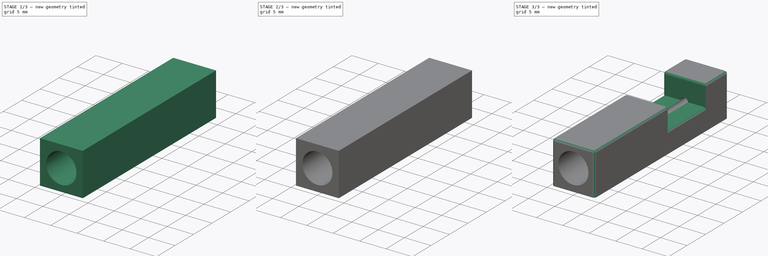
[diagram: build sequence overview — one tinted view per stage of 3, left to right]
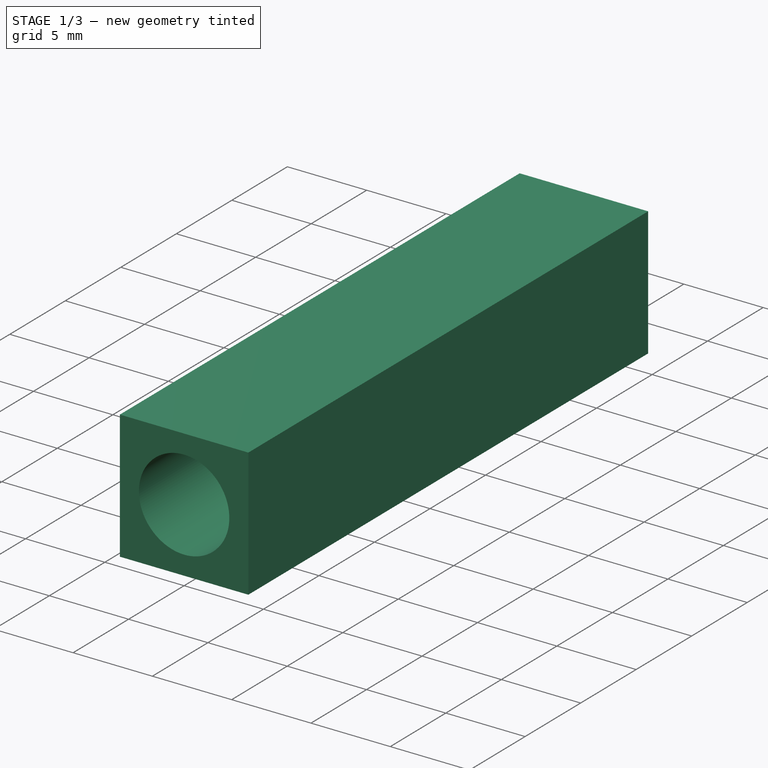
[diagram: stage 1 of 3 — iso view after this stage's code; geometry added in this stage tinted green]
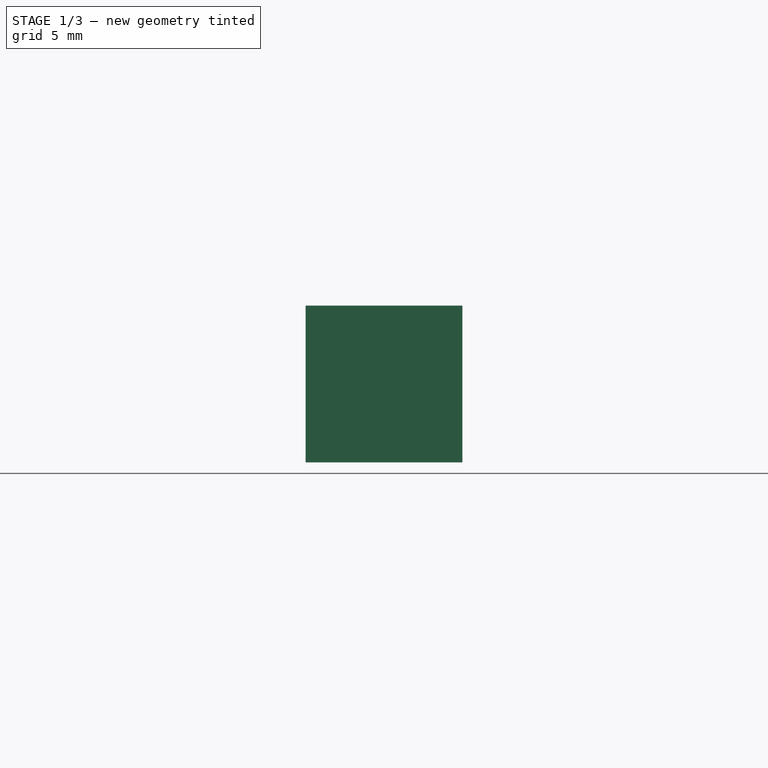
[diagram: stage 1 of 3 — front view after this stage's code; geometry added in this stage tinted green]
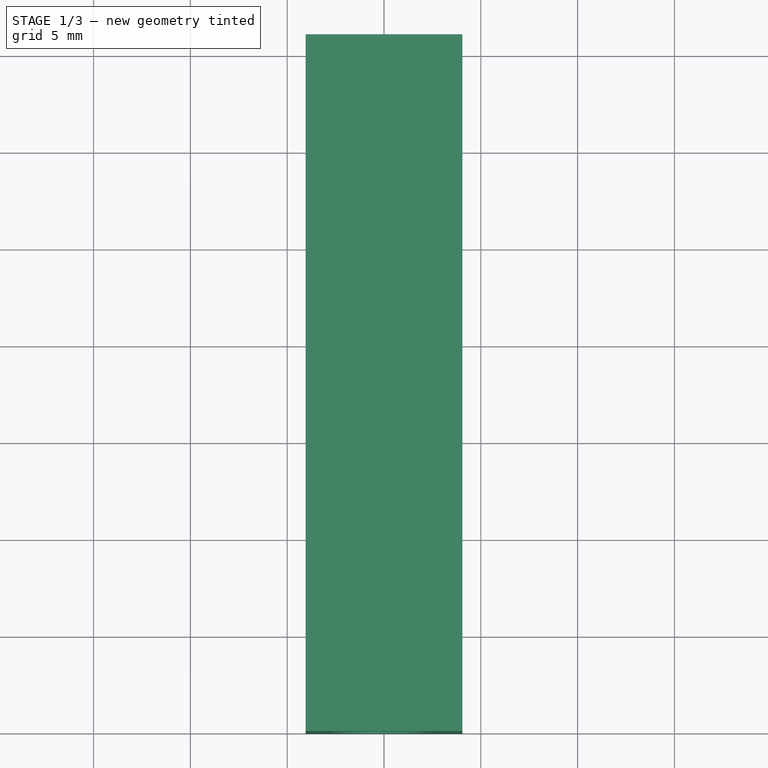
[diagram: stage 1 of 3 — top view after this stage's code; geometry added in this stage tinted green]
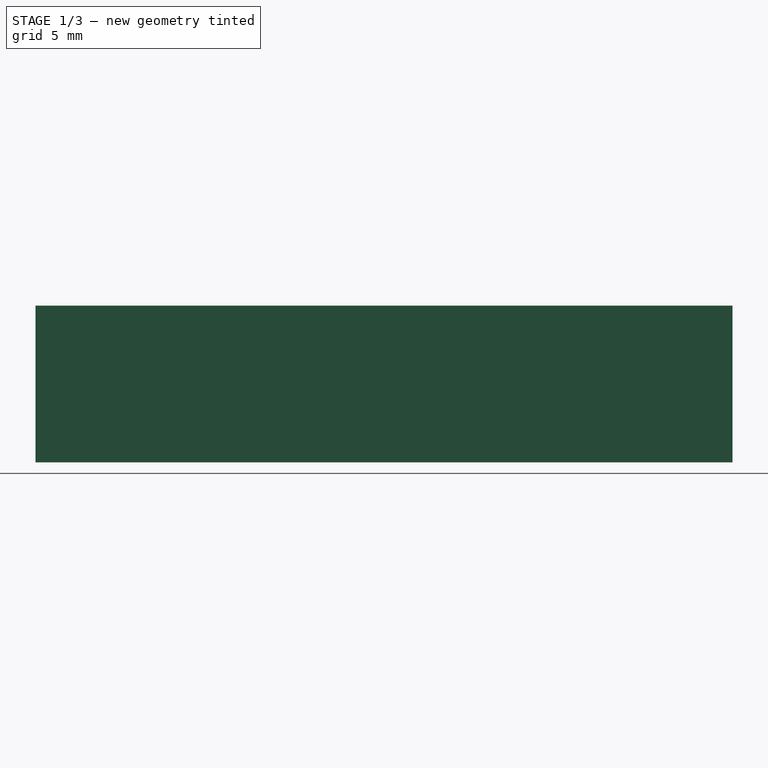
[diagram: stage 1 of 3 — right view after this stage's code; geometry added in this stage tinted green]
FCSTD DOCUMENT  (FreeCAD 1.0R39109 (Git))
Label: electrode_mount
License: All rights reserved
LicenseURL: https://en.wikipedia.org/wiki/All_rights_reserved
objects: Sketcher::SketchObject×4, PartDesign::Pocket×3, PartDesign::Plane×2, Spreadsheet::Sheet×1, PartDesign::Pad×1, PartDesign::Fillet×1, PartDesign::Body×1
note: 26 computed .brp shape members not serialized (recipe doc carries the construction recipe); baked Part::Feature solids carry a one-line shape summary decoded from their .brp

FEATURE [Spreadsheet::Sheet] Spreadsheet
  cells = A2='Parameters; A3='tube_diameter; B3(tube_diameter)==5.5 mm; A4='pin_diameter; B4(pin_diameter)==1.27 mm; A6='tube_margin; B6(tube_margin)==0.1 mm; A7='pin_margin; B7(pin_margin)==0.04 mm; A9='tube_insertion_depth; B9(tube_insertion_depth)==20 mm; A10='pin_insertion_depth; B10(pin_insertion_depth)==3 mm; A12='tube_hole_diameter; B12(tube_hole_diameter)==tube_diameter + 2 * tube_margin; A13='pin_hole_diameter; B13(pin_hole_diameter)==pin_diameter + pin_margin; A15='body_wall_thickness; B15(body_wall_thickness)==1.2 mm; A16='body_width; B16(body_width)==tube_diameter + 2 * tube_margin + 2 * body_wall_thickness; A17='body_tube_to_pin_gap; B17(body_tube_to_pin_gap)==10 mm; A18='body_tube_section_length; B18(body_tube_section_length)==tube_insertion_depth; A19='body_pin_section_length; B19(body_pin_section_length)==2 * pin_insertion_depth; A20='pin_hole_depth; B20(pin_hole_depth)==body_pin_section_length + body_tube_to_pin_gap; A21='body_length; B21(body_length)==body_tube_section_length + body_pin_section_length + body_tube_to_pin_gap; A22='fillet_radius; B22(fillet_radius)==0.5 mm
FEATURE [Sketcher::SketchObject] Sketch  label="BodySketch"
  ArcFitTolerance = 0
  AttachmentSupport = -> [XY_Plane]
  FullyConstrained = true
  MakeInternals = false
  MapMode = 5
  expr: Constraints[10] = Spreadsheet.body_length
  expr: Constraints[9] = Spreadsheet.body_width
  sketch-geometry (4):
    g0: LineSegment StartX=-4.05 StartY=36 StartZ=0 EndX=4.05 EndY=36 EndZ=0
    g1: LineSegment StartX=4.05 StartY=36 StartZ=0 EndX=4.05 EndY=0 EndZ=0
    g2: LineSegment StartX=4.05 StartY=0 StartZ=0 EndX=-4.05 EndY=0 EndZ=0
    g3: LineSegment StartX=-4.05 StartY=0 StartZ=0 EndX=-4.05 EndY=36 EndZ=0
  constraints (11):
    c: Coincident(g0,g1)
    c: Coincident(g1,g2)
    c: Coincident(g2,g3)
    c: Coincident(g3,g0)
    c: Horizontal(g0)
    c: Horizontal(g2)
    c: Vertical(g1)
    c: Vertical(g3)
    c: Symmetric(g2,g1,g-1)
    c: DistanceX(g2,g2) = 8.1
    c: DistanceY(g1,g1) = 36
FEATURE [PartDesign::Pad] Pad
  Direction = (0,0,1)
  Length = 8.1
  Length2 = 10
  Midplane = true
  Profile = -> Sketch
  ReferenceAxis = -> Sketch [N_Axis]
  Suppressed = false
  Type = 0
  expr: Length = Spreadsheet.body_width
FEATURE [Sketcher::SketchObject] Sketch001  label="TubeHoleSketch"
  ArcFitTolerance = 0
  AttachmentSupport = -> [XZ_Plane]
  FullyConstrained = true
  MakeInternals = false
  MapMode = 5
  Placement = pos=(0,0,0) rot=(1,0,0;1.5708rad)
  expr: Constraints[1] = Spreadsheet.tube_hole_diameter
  sketch-geometry (1):
    g0: Circle CenterX=0 CenterY=0 CenterZ=0 NormalX=0 NormalY=0 NormalZ=1 AngleXU=0 Radius=2.85
  constraints (2):
    c: Coincident(g0,g-1)
    c: Diameter(g0) = 5.7
FEATURE [PartDesign::Pocket] Pocket  label="TubeHolePocket"
  BaseFeature = -> Pad
  Direction = (0,1,-2e-16)
  Length = 20
  Length2 = 5
  Profile = -> Sketch001
  ReferenceAxis = -> Sketch001 [N_Axis]
  Suppressed = false
  Type = 0
  expr: Length = Spreadsheet.tube_insertion_depth
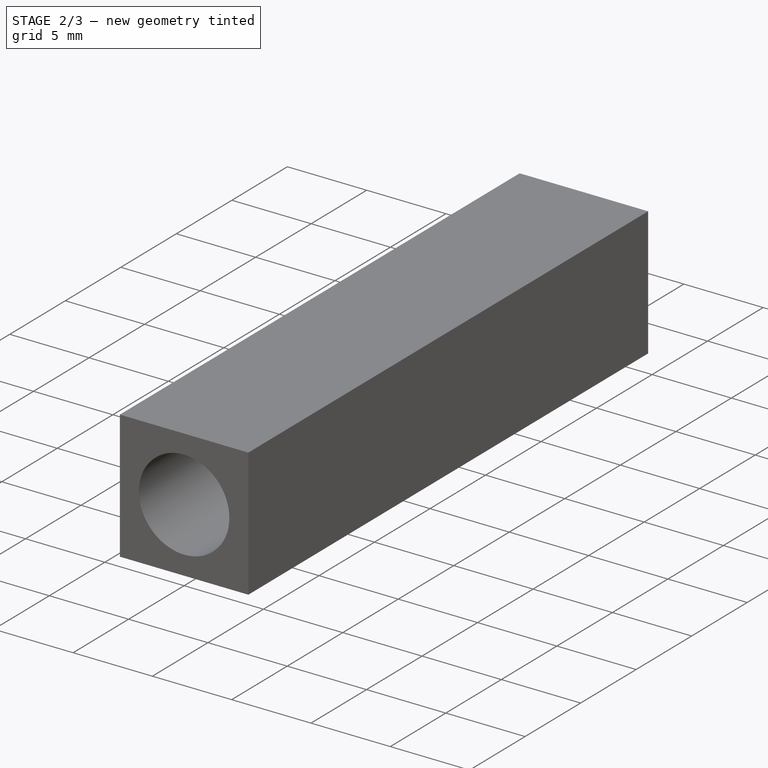
[diagram: stage 2 of 3 — iso view after this stage's code; geometry added in this stage tinted green]
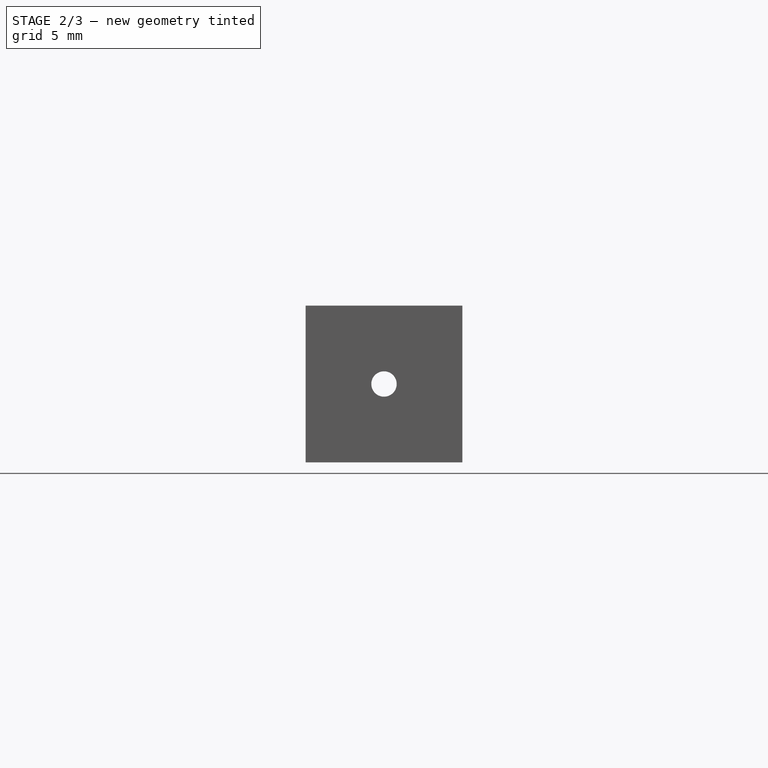
[diagram: stage 2 of 3 — front view after this stage's code; geometry added in this stage tinted green]
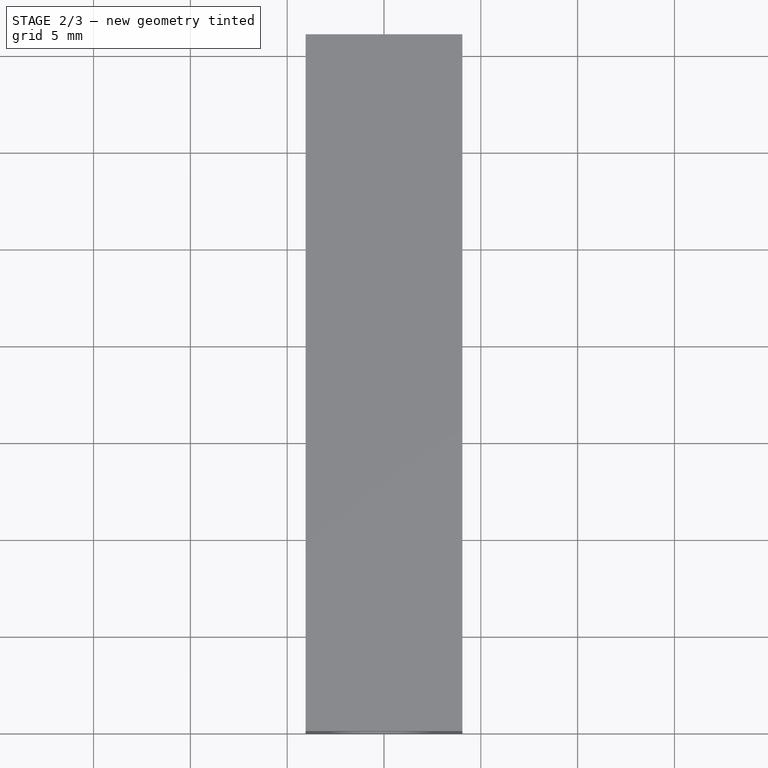
[diagram: stage 2 of 3 — top view after this stage's code; geometry added in this stage tinted green]
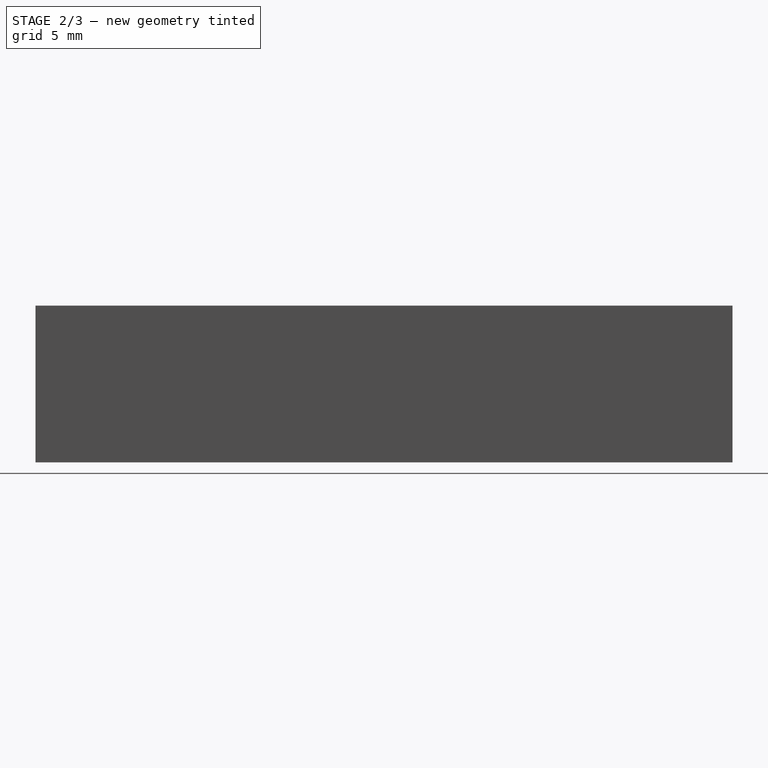
[diagram: stage 2 of 3 — right view after this stage's code; geometry added in this stage tinted green]
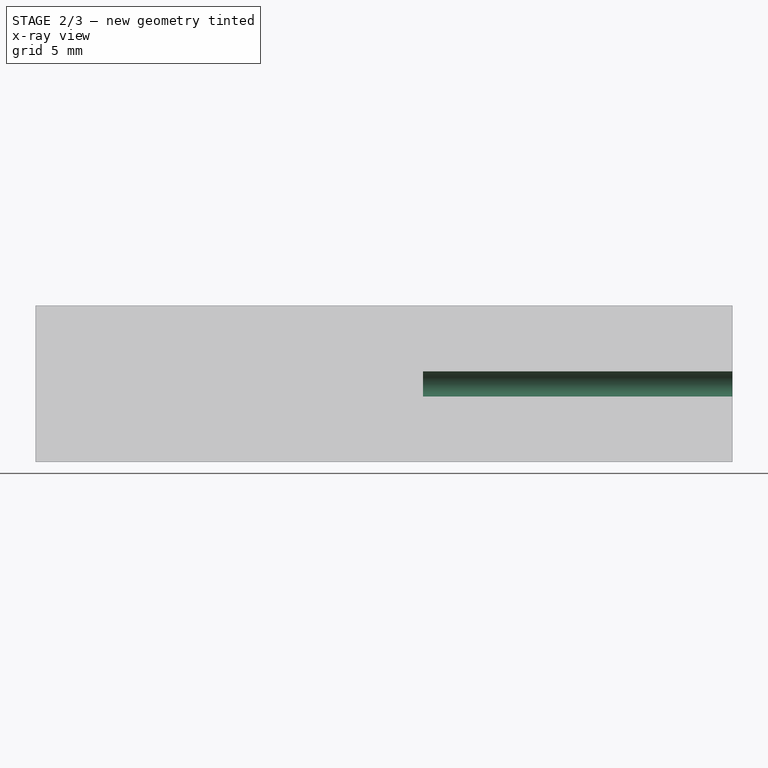
[diagram: stage 2 of 3 — x-ray composite at the right view; earlier geometry ghosted, this stage's added geometry solid]
FEATURE [PartDesign::Plane] DatumPlane  label="RearDatumPlane"
  AttachmentOffset = pos=(0,0,36) rot=(0,0,1;0rad)
  AttachmentSupport = -> [XZ_Plane]
  Length = 60
  MapMode = 5
  Placement = pos=(0,36,-8e-15) rot=(0,0.707107,0.707107;3.14159rad)
  ResizeMode = 0
  Width = 60
  expr: .AttachmentOffset.Base.z = Spreadsheet.body_length
FEATURE [Sketcher::SketchObject] Sketch002  label="PinHoleSketch"
  ArcFitTolerance = 0
  AttachmentSupport = -> [DatumPlane]
  FullyConstrained = true
  MakeInternals = false
  MapMode = 5
  Placement = pos=(0,36,-8e-15) rot=(0,0.707107,0.707107;3.14159rad)
  expr: Constraints[1] = Spreadsheet.pin_hole_diameter
  sketch-geometry (1):
    g0: Circle CenterX=0 CenterY=0 CenterZ=0 NormalX=0 NormalY=0 NormalZ=1 AngleXU=0 Radius=0.655
  constraints (2):
    c: Coincident(g0,g-1)
    c: Diameter(g0) = 1.31
FEATURE [PartDesign::Pocket] Pocket001  label="PinHolePocket"
  BaseFeature = -> Pocket
  Direction = (0,-1,2e-16)
  Length = 16
  Length2 = 5
  Profile = -> Sketch002
  ReferenceAxis = -> Sketch002 [N_Axis]
  Suppressed = false
  Type = 0
  expr: Length = Spreadsheet.pin_hole_depth
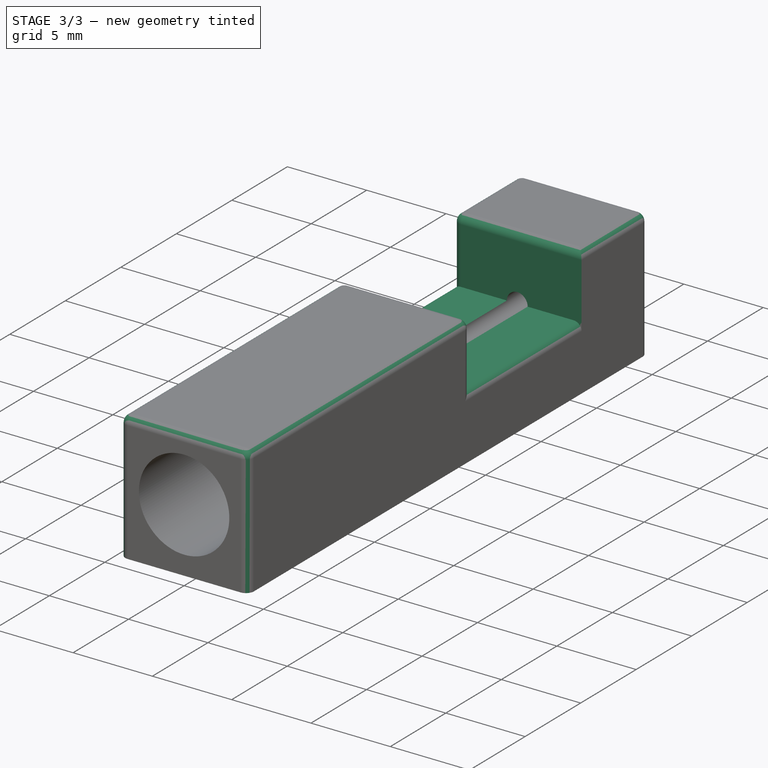
[diagram: stage 3 of 3 — iso view after this stage's code; geometry added in this stage tinted green]
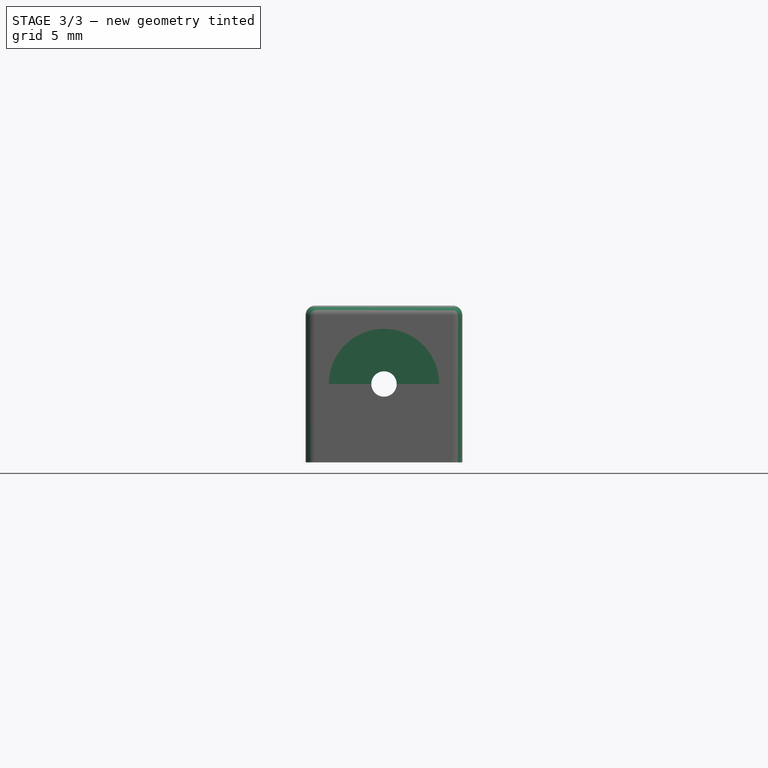
[diagram: stage 3 of 3 — front view after this stage's code; geometry added in this stage tinted green]
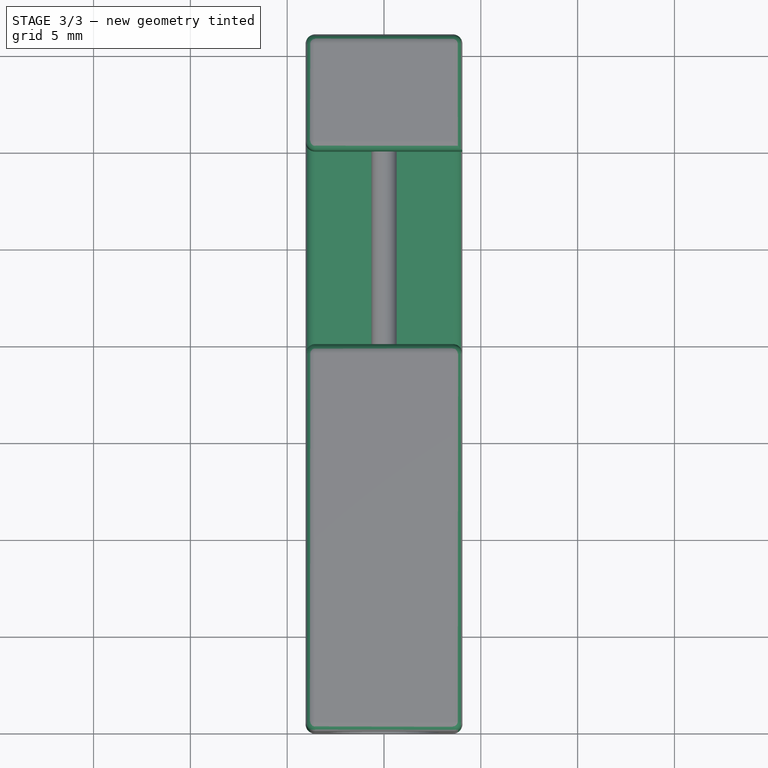
[diagram: stage 3 of 3 — top view after this stage's code; geometry added in this stage tinted green]
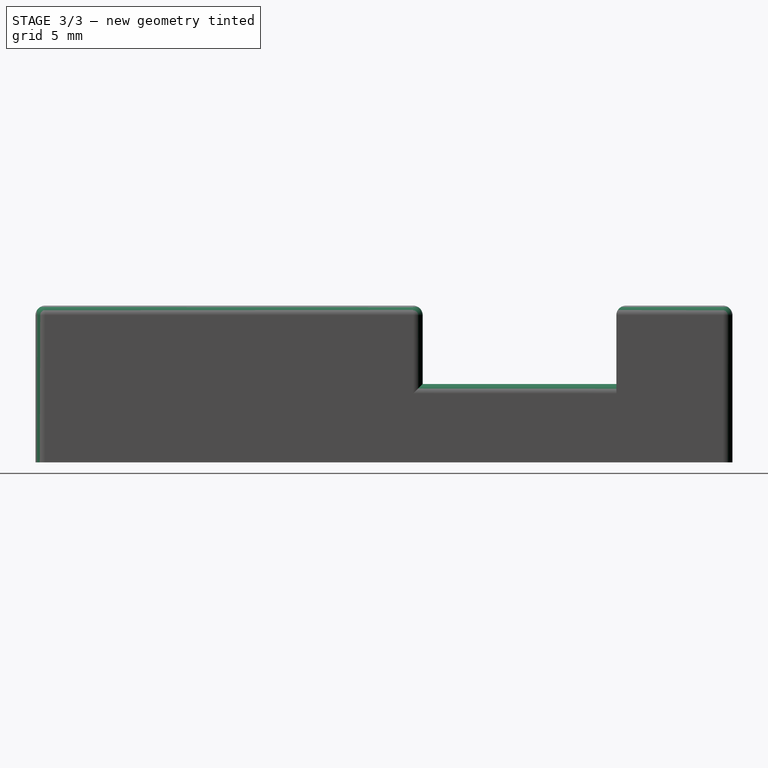
[diagram: stage 3 of 3 — right view after this stage's code; geometry added in this stage tinted green]
FEATURE [PartDesign::Plane] DatumPlane001  label="TopDatumPlane"
  AttachmentOffset = pos=(0,0,4.05) rot=(0,0,1;0rad)
  AttachmentSupport = -> [XY_Plane]
  Length = 61.0454
  MapMode = 5
  Placement = pos=(0,0,4.05) rot=(0,0,1;0rad)
  ResizeMode = 0
  Width = 72.0454
  expr: .AttachmentOffset.Base.z = Spreadsheet.body_width * 0.5
FEATURE [Sketcher::SketchObject] Sketch003  label="GapCutoutSketch"
  ArcFitTolerance = 0
  AttachmentSupport = -> [DatumPlane001]
  FullyConstrained = true
  MakeInternals = false
  MapMode = 5
  Placement = pos=(0,0,4.05) rot=(0,0,1;0rad)
  expr: Constraints[12] = Spreadsheet.body_width * 1.5
  expr: Constraints[13] = Spreadsheet.body_tube_to_pin_gap
  expr: Constraints[2] = Spreadsheet.body_tube_section_length
  sketch-geometry (5):
    g0: LineSegment [constr] StartX=0 StartY=0 StartZ=0 EndX=0 EndY=20 EndZ=0
    g1: LineSegment StartX=-6.075 StartY=30 StartZ=0 EndX=6.075 EndY=30 EndZ=0
    g2: LineSegment StartX=6.075 StartY=30 StartZ=0 EndX=6.075 EndY=20 EndZ=0
    g3: LineSegment StartX=6.075 StartY=20 StartZ=0 EndX=-6.075 EndY=20 EndZ=0
    g4: LineSegment StartX=-6.075 StartY=20 StartZ=0 EndX=-6.075 EndY=30 EndZ=0
  constraints (14):
    c: Coincident(g0,g-1)
    c: Vertical(g0)
    c: DistanceY(g0,g0) = 20
    c: Coincident(g1,g2)
    c: Coincident(g2,g3)
    c: Coincident(g3,g4)
    c: Coincident(g4,g1)
    c: Horizontal(g1)
    c: Horizontal(g3)
    c: Vertical(g2)
    c: Vertical(g4)
    c: Symmetric(g3,g2,g0)
    c: DistanceX(g3,g3) = 12.15
    c: DistanceY(g2,g2) = 10
FEATURE [PartDesign::Pocket] Pocket002  label="GapCutoutPocket"
  BaseFeature = -> Pocket001
  Direction = (0,0,-1)
  Length = 4.05
  Length2 = 5
  Profile = -> Sketch003
  ReferenceAxis = -> Sketch003 [N_Axis]
  Suppressed = false
  Type = 0
  expr: Length = Spreadsheet.body_width * 0.5
FEATURE [PartDesign::Fillet] Fillet
  Base = -> Pocket002 [Edge4,Edge3,Edge1,Edge15,Edge7,Edge11,Edge17,Edge34,Edge12,Edge18,Edge19,Edge20,Edge31,Edge10,Edge9,Edge8,Edge16]
  BaseFeature = -> Pocket002
  Radius = 0.5
  SupportTransform = false
  Suppressed = false
  UseAllEdges = false
  expr: Radius = Spreadsheet.fillet_radius
FEATURE [PartDesign::Body] Body
  AllowCompound = false
  Group = -> [Sketch,Pad,Sketch001,Pocket,DatumPlane,Sketch002,Pocket001,DatumPlane001,Sketch003,Pocket002,Fillet]
  Origin = -> Origin
  Tip = -> Fillet
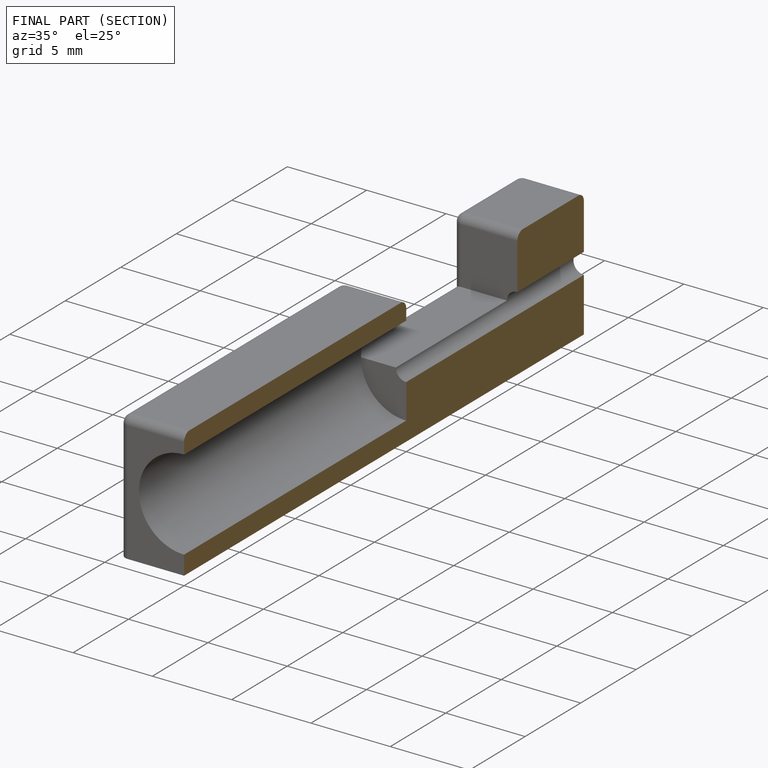
[diagram: finished part — half-section view (interior)]
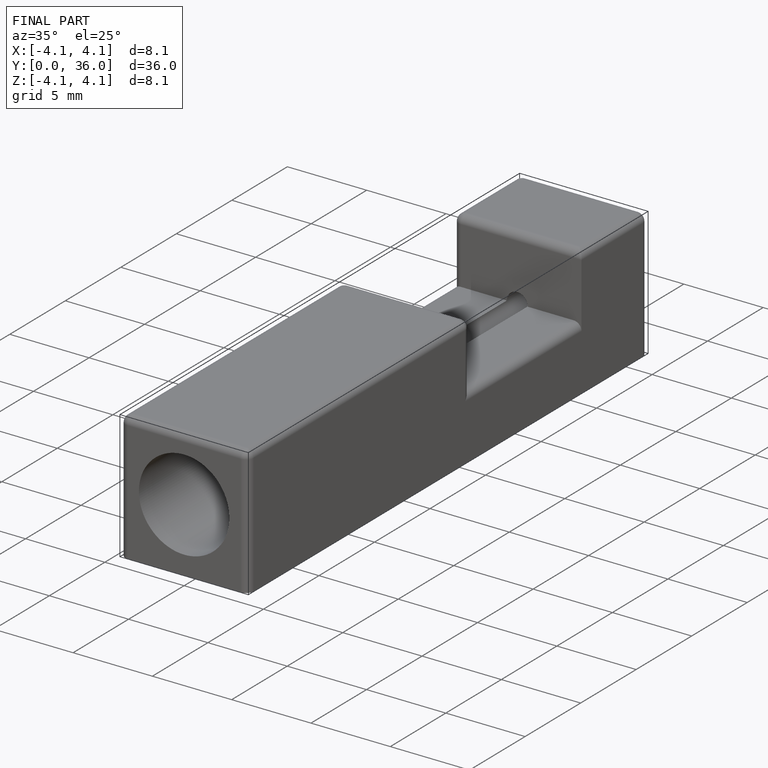
[diagram: finished part — iso view with bounding-box wireframe]
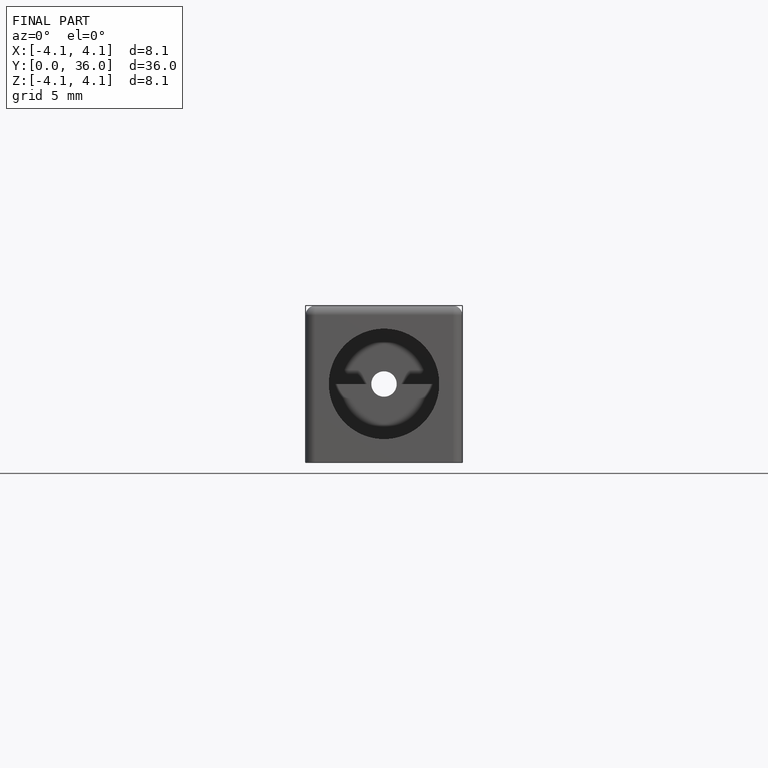
[diagram: finished part — front view with bounding-box wireframe]
